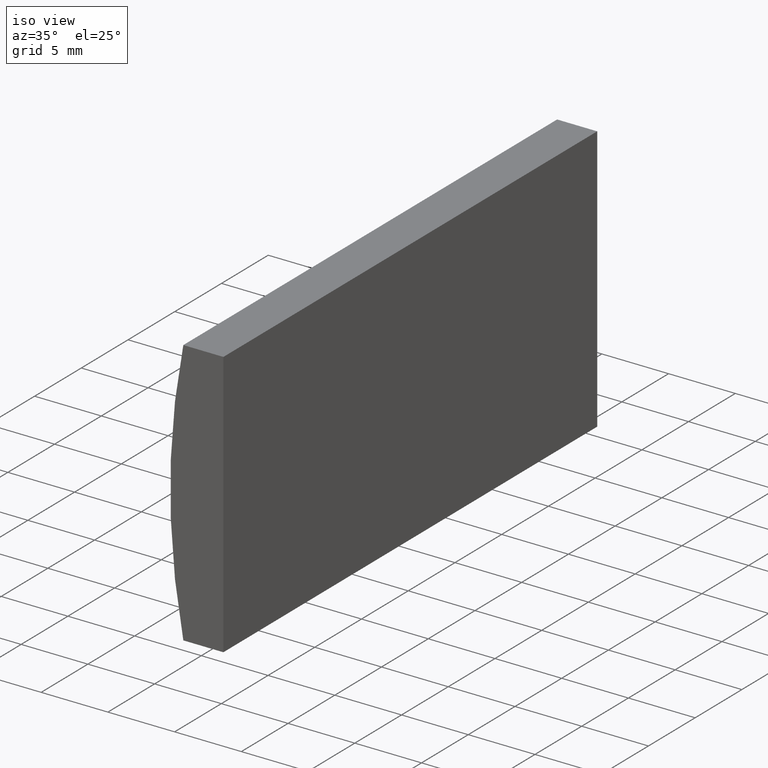
[diagram: clean part render]
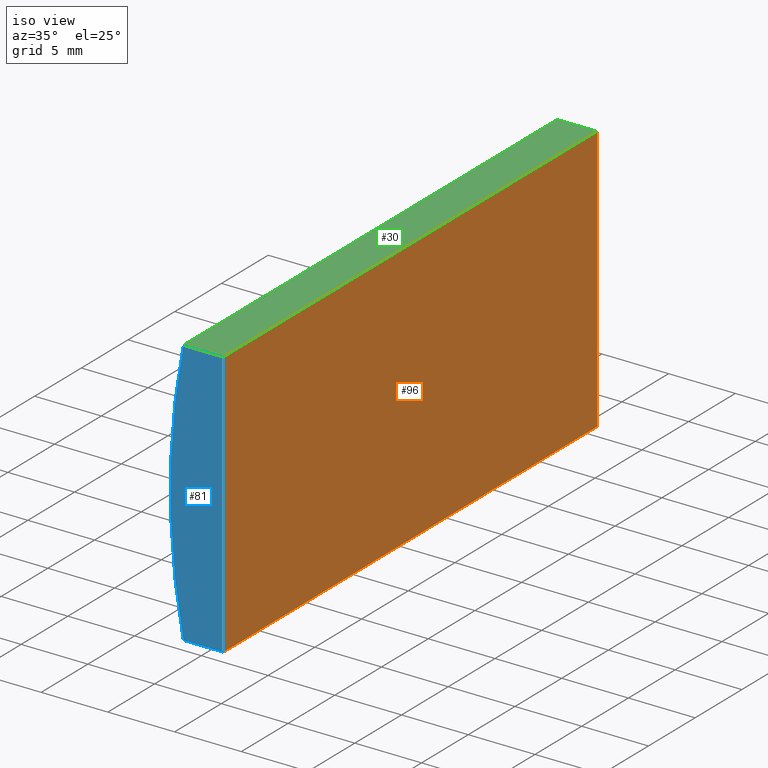
[diagram: same view with three faces highlighted in distinct colors, each labeled with its STEP entity id]
A machine part, iso view with three faces highlighted in distinct colors.
Their STEP definitions:

[orange] entity #96 — the highlighted planar face has unit normal (-1, 0, 0).
#16 = VECTOR ( 'NONE', #36, 1000.000000000000000 ) ;
#18 = CARTESIAN_POINT ( 'NONE',  ( -43.34479566514873000, 40.00000000000000000, 10.00000000000000000 ) ) ;
#23 = CARTESIAN_POINT ( 'NONE',  ( -43.34479566514873700, 0.0000000000000000000, -9.999999999999992900 ) ) ;
#26 = LINE ( 'NONE', #146, #16 ) ;
#29 = DIRECTION ( 'NONE',  ( 3.469446951953615200E-016, 0.0000000000000000000, 1.000000000000000000 ) ) ;
#34 = CARTESIAN_POINT ( 'NONE',  ( -43.34479566514873700, 40.00000000000000000, -9.999999999999992900 ) ) ;
#36 = DIRECTION ( 'NONE',  ( -3.469446951953615200E-016, -0.0000000000000000000, -1.000000000000000000 ) ) ;
#37 = EDGE_CURVE ( 'NONE', #84, #106, #26, .T. ) ;
#49 = LINE ( 'NONE', #18, #113 ) ;
#53 = ORIENTED_EDGE ( 'NONE', *, *, #37, .T. ) ;
#78 = ORIENTED_EDGE ( 'NONE', *, *, #109, .T. ) ;
#84 = VERTEX_POINT ( 'NONE', #130 ) ;
#85 = ORIENTED_EDGE ( 'NONE', *, *, #121, .F. ) ;
#94 = VERTEX_POINT ( 'NONE', #134 ) ;
#96 = ADVANCED_FACE ( 'NONE', ( #122 ), #149, .F. ) ;
#98 = DIRECTION ( 'NONE',  ( -0.0000000000000000000, -1.000000000000000000, -0.0000000000000000000 ) ) ;
#103 = ORIENTED_EDGE ( 'NONE', *, *, #190, .F. ) ;
#106 = VERTEX_POINT ( 'NONE', #23 ) ;
#107 = LINE ( 'NONE', #180, #110 ) ;
#109 = EDGE_CURVE ( 'NONE', #94, #84, #49, .T. ) ;
#110 = VECTOR ( 'NONE', #125, 1000.000000000000000 ) ;
#112 = CARTESIAN_POINT ( 'NONE',  ( -43.34479566514873700, 40.00000000000000000, -9.999999999999992900 ) ) ;
#113 = VECTOR ( 'NONE', #98, 1000.000000000000000 ) ;
#121 = EDGE_CURVE ( 'NONE', #195, #106, #107, .T. ) ;
#122 = FACE_OUTER_BOUND ( 'NONE', #124, .T. ) ;
#124 = EDGE_LOOP ( 'NONE', ( #53, #85, #103, #78 ) ) ;
#125 = DIRECTION ( 'NONE',  ( -0.0000000000000000000, -1.000000000000000000, -0.0000000000000000000 ) ) ;
#130 = CARTESIAN_POINT ( 'NONE',  ( -43.34479566514873000, 0.0000000000000000000, 10.00000000000000000 ) ) ;
#134 = CARTESIAN_POINT ( 'NONE',  ( -43.34479566514873000, 40.00000000000000000, 10.00000000000000000 ) ) ;
#145 = CARTESIAN_POINT ( 'NONE',  ( -43.34479566514873700, 40.00000000000000000, -9.999999999999992900 ) ) ;
#146 = CARTESIAN_POINT ( 'NONE',  ( -43.34479566514873700, 0.0000000000000000000, -9.999999999999992900 ) ) ;
#149 = PLANE ( 'NONE',  #170 ) ;
#165 = VECTOR ( 'NONE', #198, 1000.000000000000000 ) ;
#170 = AXIS2_PLACEMENT_3D ( 'NONE', #112, #172, #29 ) ;
#172 = DIRECTION ( 'NONE',  ( -1.000000000000000000, 0.0000000000000000000, 3.469446951953615200E-016 ) ) ;
#180 = CARTESIAN_POINT ( 'NONE',  ( -43.34479566514873700, 40.00000000000000000, -9.999999999999992900 ) ) ;
#190 = EDGE_CURVE ( 'NONE', #94, #195, #192, .T. ) ;
#192 = LINE ( 'NONE', #145, #165 ) ;
#195 = VERTEX_POINT ( 'NONE', #34 ) ;
#198 = DIRECTION ( 'NONE',  ( -3.469446951953615200E-016, -0.0000000000000000000, -1.000000000000000000 ) ) ;

[blue] entity #81 — the highlighted planar face has unit normal (0, 1, 0).
#1 = DIRECTION ( 'NONE',  ( 0.0000000000000000000, 1.000000000000000000, 0.0000000000000000000 ) ) ;
#11 = CARTESIAN_POINT ( 'NONE',  ( 4.355204334851265500, 0.0000000000000000000, 4.286263797015675000E-017 ) ) ;
#16 = VECTOR ( 'NONE', #36, 1000.000000000000000 ) ;
#20 = DIRECTION ( 'NONE',  ( 1.000000000000000000, 0.0000000000000000000, 0.0000000000000000000 ) ) ;
#21 = CARTESIAN_POINT ( 'NONE',  ( -46.34807366568830400, 0.0000000000000000000, 10.00000000000000000 ) ) ;
#23 = CARTESIAN_POINT ( 'NONE',  ( -43.34479566514873700, 0.0000000000000000000, -9.999999999999992900 ) ) ;
#26 = LINE ( 'NONE', #146, #16 ) ;
#28 = LINE ( 'NONE', #21, #68 ) ;
#31 = PLANE ( 'NONE',  #62 ) ;
#35 = VECTOR ( 'NONE', #166, 1000.000000000000000 ) ;
#36 = DIRECTION ( 'NONE',  ( -3.469446951953615200E-016, -0.0000000000000000000, -1.000000000000000000 ) ) ;
#37 = EDGE_CURVE ( 'NONE', #84, #106, #26, .T. ) ;
#42 = ORIENTED_EDGE ( 'NONE', *, *, #52, .F. ) ;
#43 = ORIENTED_EDGE ( 'NONE', *, *, #99, .F. ) ;
#45 = ORIENTED_EDGE ( 'NONE', *, *, #37, .F. ) ;
#47 = CARTESIAN_POINT ( 'NONE',  ( -46.34807366568830400, 0.0000000000000000000, 10.00000000000000000 ) ) ;
#52 = EDGE_CURVE ( 'NONE', #106, #186, #58, .T. ) ;
#58 = LINE ( 'NONE', #188, #35 ) ;
#62 = AXIS2_PLACEMENT_3D ( 'NONE', #128, #131, #132 ) ;
#68 = VECTOR ( 'NONE', #20, 1000.000000000000000 ) ;
#77 = CARTESIAN_POINT ( 'NONE',  ( -46.34807366568831100, 0.0000000000000000000, -10.00000000000000000 ) ) ;
#81 = ADVANCED_FACE ( 'NONE', ( #101 ), #31, .F. ) ;
#84 = VERTEX_POINT ( 'NONE', #130 ) ;
#97 = EDGE_CURVE ( 'NONE', #171, #84, #28, .T. ) ;
#99 = EDGE_CURVE ( 'NONE', #186, #171, #168, .T. ) ;
#101 = FACE_OUTER_BOUND ( 'NONE', #141, .T. ) ;
#106 = VERTEX_POINT ( 'NONE', #23 ) ;
#128 = CARTESIAN_POINT ( 'NONE',  ( 4.355204334851265500, 0.0000000000000000000, 4.286263797015675000E-017 ) ) ;
#130 = CARTESIAN_POINT ( 'NONE',  ( -43.34479566514873000, 0.0000000000000000000, 10.00000000000000000 ) ) ;
#131 = DIRECTION ( 'NONE',  ( 0.0000000000000000000, 1.000000000000000000, 0.0000000000000000000 ) ) ;
#132 = DIRECTION ( 'NONE',  ( 0.0000000000000000000, -0.0000000000000000000, 1.000000000000000000 ) ) ;
#141 = EDGE_LOOP ( 'NONE', ( #43, #42, #45, #158 ) ) ;
#146 = CARTESIAN_POINT ( 'NONE',  ( -43.34479566514873700, 0.0000000000000000000, -9.999999999999992900 ) ) ;
#148 = DIRECTION ( 'NONE',  ( 0.0000000000000000000, 0.0000000000000000000, 1.000000000000000000 ) ) ;
#158 = ORIENTED_EDGE ( 'NONE', *, *, #97, .F. ) ;
#166 = DIRECTION ( 'NONE',  ( -1.000000000000000000, -0.0000000000000000000, -2.310440093344863800E-015 ) ) ;
#168 = CIRCLE ( 'NONE', #187, 51.68000000000000700 ) ;
#171 = VERTEX_POINT ( 'NONE', #47 ) ;
#186 = VERTEX_POINT ( 'NONE', #77 ) ;
#187 = AXIS2_PLACEMENT_3D ( 'NONE', #11, #1, #148 ) ;
#188 = CARTESIAN_POINT ( 'NONE',  ( -46.34807366568831100, 0.0000000000000000000, -10.00000000000000000 ) ) ;

[green] entity #30 — the highlighted planar face has unit normal (0, 0, -1).
#6 = EDGE_LOOP ( 'NONE', ( #50, #60, #40, #56 ) ) ;
#10 = CARTESIAN_POINT ( 'NONE',  ( -46.34807366568830400, 40.00000000000000000, 10.00000000000000000 ) ) ;
#15 = AXIS2_PLACEMENT_3D ( 'NONE', #162, #44, #154 ) ;
#18 = CARTESIAN_POINT ( 'NONE',  ( -43.34479566514873000, 40.00000000000000000, 10.00000000000000000 ) ) ;
#20 = DIRECTION ( 'NONE',  ( 1.000000000000000000, 0.0000000000000000000, 0.0000000000000000000 ) ) ;
#21 = CARTESIAN_POINT ( 'NONE',  ( -46.34807366568830400, 0.0000000000000000000, 10.00000000000000000 ) ) ;
#28 = LINE ( 'NONE', #21, #68 ) ;
#30 = ADVANCED_FACE ( 'NONE', ( #93 ), #179, .F. ) ;
#40 = ORIENTED_EDGE ( 'NONE', *, *, #139, .F. ) ;
#44 = DIRECTION ( 'NONE',  ( 0.0000000000000000000, 0.0000000000000000000, -1.000000000000000000 ) ) ;
#47 = CARTESIAN_POINT ( 'NONE',  ( -46.34807366568830400, 0.0000000000000000000, 10.00000000000000000 ) ) ;
#49 = LINE ( 'NONE', #18, #113 ) ;
#50 = ORIENTED_EDGE ( 'NONE', *, *, #97, .T. ) ;
#55 = EDGE_CURVE ( 'NONE', #136, #171, #108, .T. ) ;
#56 = ORIENTED_EDGE ( 'NONE', *, *, #55, .T. ) ;
#57 = LINE ( 'NONE', #10, #65 ) ;
#60 = ORIENTED_EDGE ( 'NONE', *, *, #109, .F. ) ;
#65 = VECTOR ( 'NONE', #184, 1000.000000000000000 ) ;
#68 = VECTOR ( 'NONE', #20, 1000.000000000000000 ) ;
#84 = VERTEX_POINT ( 'NONE', #130 ) ;
#93 = FACE_OUTER_BOUND ( 'NONE', #6, .T. ) ;
#94 = VERTEX_POINT ( 'NONE', #134 ) ;
#97 = EDGE_CURVE ( 'NONE', #171, #84, #28, .T. ) ;
#98 = DIRECTION ( 'NONE',  ( -0.0000000000000000000, -1.000000000000000000, -0.0000000000000000000 ) ) ;
#108 = LINE ( 'NONE', #202, #114 ) ;
#109 = EDGE_CURVE ( 'NONE', #94, #84, #49, .T. ) ;
#113 = VECTOR ( 'NONE', #98, 1000.000000000000000 ) ;
#114 = VECTOR ( 'NONE', #193, 1000.000000000000000 ) ;
#118 = CARTESIAN_POINT ( 'NONE',  ( -46.34807366568830400, 40.00000000000000000, 10.00000000000000000 ) ) ;
#130 = CARTESIAN_POINT ( 'NONE',  ( -43.34479566514873000, 0.0000000000000000000, 10.00000000000000000 ) ) ;
#134 = CARTESIAN_POINT ( 'NONE',  ( -43.34479566514873000, 40.00000000000000000, 10.00000000000000000 ) ) ;
#136 = VERTEX_POINT ( 'NONE', #118 ) ;
#139 = EDGE_CURVE ( 'NONE', #136, #94, #57, .T. ) ;
#154 = DIRECTION ( 'NONE',  ( -1.000000000000000000, 0.0000000000000000000, -0.0000000000000000000 ) ) ;
#162 = CARTESIAN_POINT ( 'NONE',  ( -46.34807366568830400, 40.00000000000000000, 10.00000000000000000 ) ) ;
#171 = VERTEX_POINT ( 'NONE', #47 ) ;
#179 = PLANE ( 'NONE',  #15 ) ;
#184 = DIRECTION ( 'NONE',  ( 1.000000000000000000, 0.0000000000000000000, 0.0000000000000000000 ) ) ;
#193 = DIRECTION ( 'NONE',  ( -0.0000000000000000000, -1.000000000000000000, -0.0000000000000000000 ) ) ;
#202 = CARTESIAN_POINT ( 'NONE',  ( -46.34807366568830400, 40.00000000000000000, 10.00000000000000000 ) ) ;